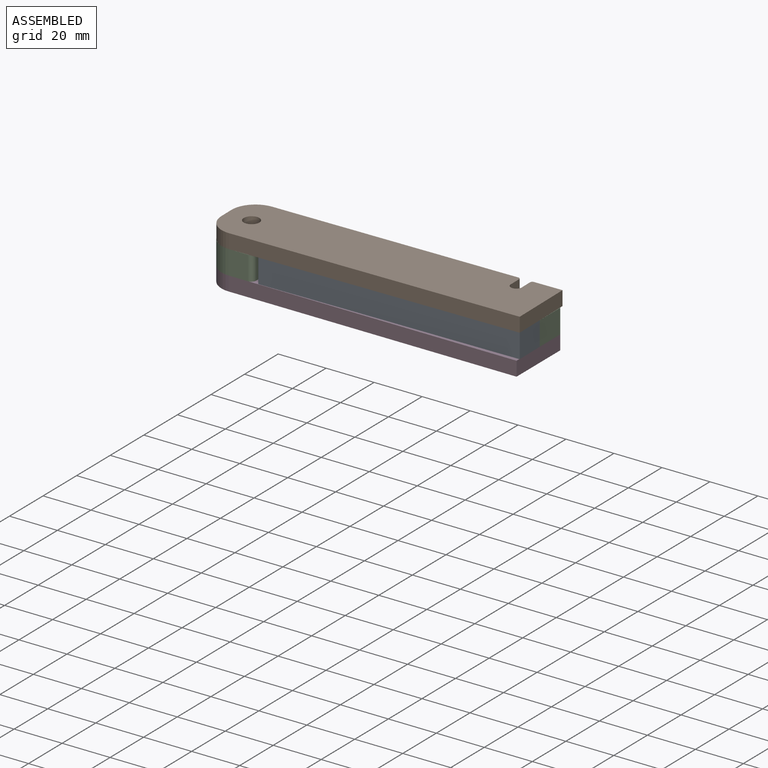
[diagram: assembled view]
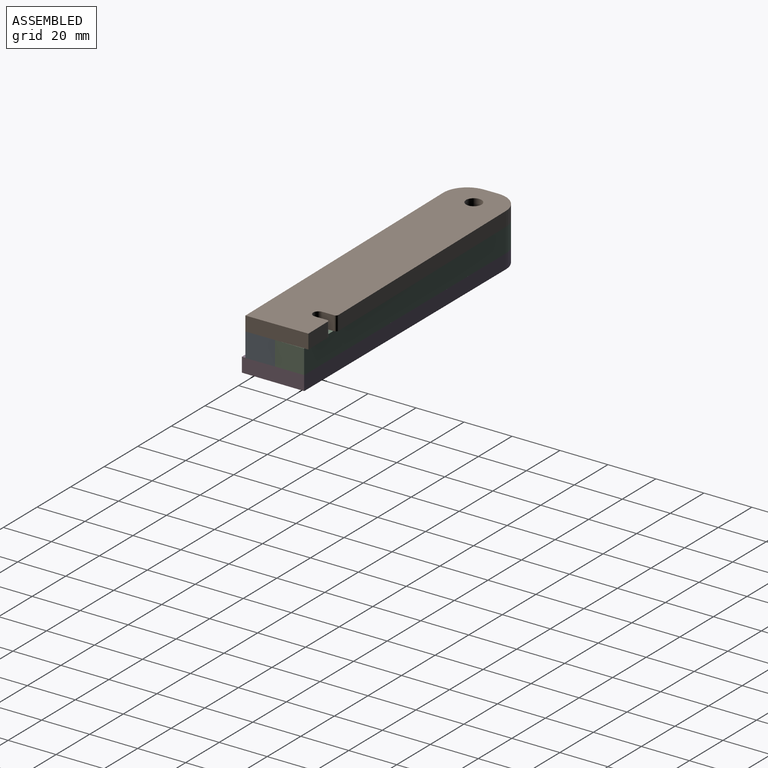
[diagram: assembled view, second angle]
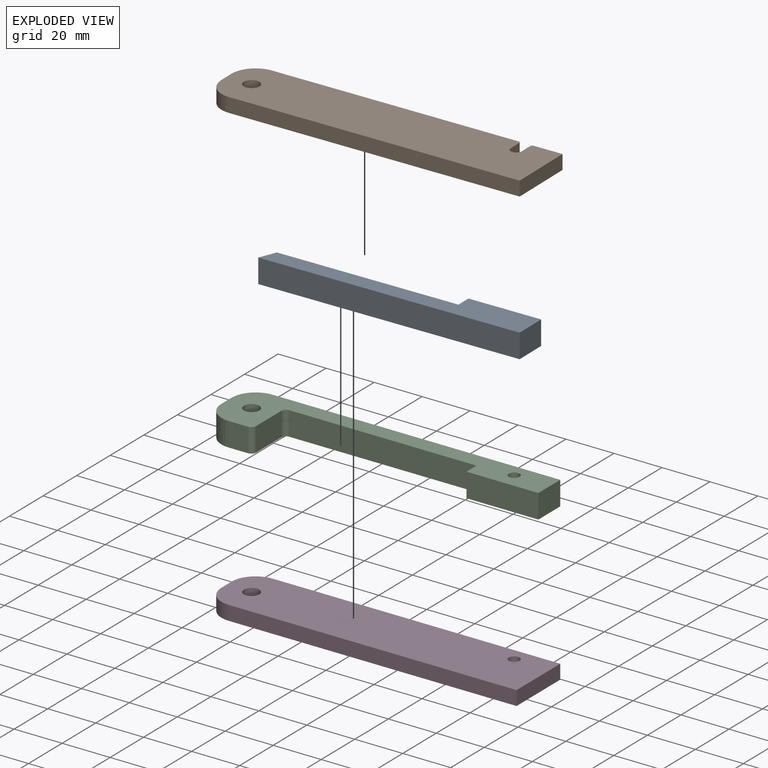
[diagram: exploded view]
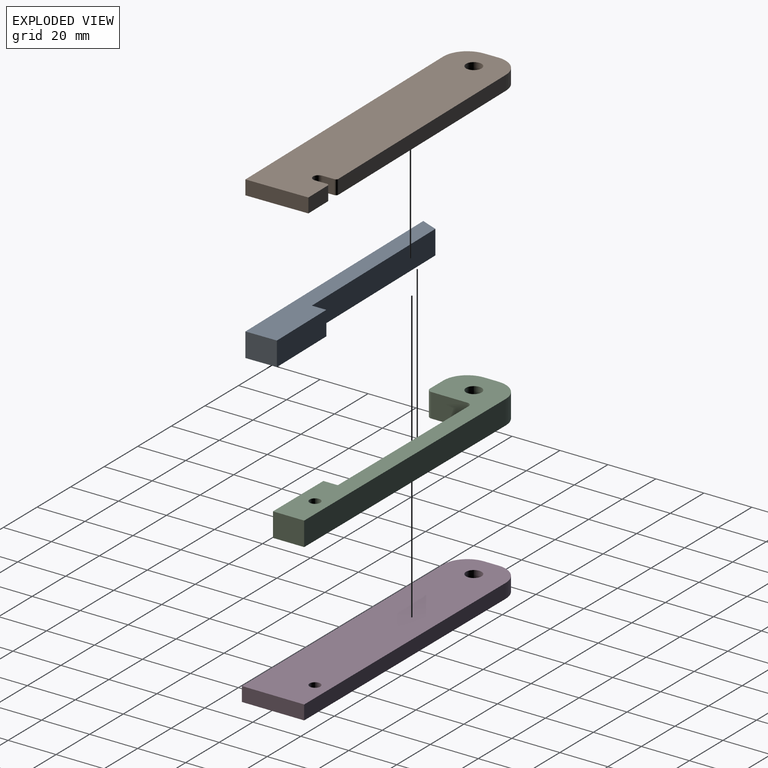
[diagram: exploded view, second angle]
ASSEMBLY  parts=4 mates=7
PART A: 8 faces, bbox 108x13x10 mm
  f0: plane 30x10mm, normal (0,1,0), area 300mm2, adj f1,f5,f6,f7
  f1: plane 10x6mm, normal (-1,0.01,0), area 60mm2, adj f0,f2,f6,f7
  f2: plane 75x10mm, normal (0,1,0), area 750mm2, adj f1,f3,f6,f7
  f3: plane 10x7mm, normal (-0.92,0.39,0), area 76mm2, adj f2,f4,f6,f7
  f4: plane 108x10mm, normal (0,-1,0), area 1080mm2, adj f3,f5,f6,f7
  f5: plane 13x10mm, normal (1,0,0), area 130mm2, adj f0,f4,f6,f7
  f6: plane 108x13mm, normal (0,0,1), area 925.8mm2, adj f0,f1,f2,f3,f4,f5
  f7: plane 108x13mm, normal (0,0,-1), area 925.8mm2, adj f0,f1,f2,f3,f4,f5
PART B: 15 faces, bbox 130x26x6 mm
  f0: plane 101.75x6mm, normal (0,1,0), area 610.5mm2, adj f1,f12,f13,f14
  f1: cylinder r=10mm len=10mm, axis (0,0,-1), area 94.2mm2, adj f0,f2,f13,f14
  f2: plane 6x6mm, normal (-1,0,0), area 36mm2, adj f1,f3,f13,f14
  f3: cylinder r=10mm len=10mm, axis (0,0,-1), area 94.2mm2, adj f2,f4,f13,f14
  f4: plane 120x6mm, normal (0,-1,0), area 720mm2, adj f3,f5,f13,f14
  f5: plane 26x6mm, normal (1,0,0), area 156mm2, adj f4,f6,f13,f14
  f6: plane 11.75x6mm, normal (0,1,0), area 70.5mm2, adj f5,f7,f13,f14
  f7: cylinder r=1mm len=6mm, axis (0,0,-1), area 9.4mm2, adj f6,f8,f13,f14
  f8: plane 6x5mm, normal (-1,0,0), area 30mm2, adj f7,f9,f13,f14
  f9: cylinder r=2.25mm len=6mm, axis (0,0,-1), area 42.4mm2, adj f8,f10,f13,f14
  f10: plane 6x5mm, normal (1,0,0), area 30mm2, adj f9,f12,f13,f14
  f11: cylinder r=3.25mm len=6.5mm, axis (0,0,-1), area 122.5mm2, adj f13,f14
  f12: cylinder r=1mm len=6mm, axis (0,0,-1), area 9.4mm2, adj f0,f10,f13,f14
  f13: plane 130x26mm, normal (0,0,1), area 3268.5mm2, adj f0,f1,f2,f3,f4,f5,f6,f7
  f14: plane 130x26mm, normal (0,0,-1), area 3268.5mm2, adj f0,f1,f2,f3,f4,f5,f6,f7
PART C: 16 faces, bbox 130x26x10 mm
  f0: plane 30x10mm, normal (0,-1,0), area 300mm2, adj f1,f13,f14,f15
  f1: plane 13x10mm, normal (1,0,0), area 130mm2, adj f0,f2,f14,f15
  f2: plane 120x10mm, normal (0,1,0), area 1200mm2, adj f1,f3,f14,f15
  f3: cylinder r=10mm len=10mm, axis (0,0,-1), area 157.1mm2, adj f2,f4,f14,f15
  f4: plane 10x6mm, normal (-1,0,0), area 60mm2, adj f3,f5,f14,f15
  f5: cylinder r=10mm len=10mm, axis (0,0,-1), area 157.1mm2, adj f4,f6,f14,f15
  f6: plane 10x8mm, normal (0,-1,0), area 80mm2, adj f5,f7,f14,f15
  f7: cylinder r=2mm len=10mm, axis (0,0,-1), area 31.4mm2, adj f6,f8,f14,f15
  f8: plane 15x10mm, normal (1,0,0), area 150mm2, adj f7,f9,f14,f15
  f9: cylinder r=2mm len=10mm, axis (0,0,-1), area 31.4mm2, adj f8,f10,f14,f15
  f10: plane 78x10mm, normal (0,-1,0), area 780mm2, adj f9,f13,f14,f15
  f11: cylinder r=3.25mm len=10mm, axis (0,0,-1), area 204.2mm2, adj f14,f15
  f12: cylinder r=2.25mm len=10mm, axis (0,0,-1), area 141.4mm2, adj f14,f15
  f13: plane 10x6mm, normal (-1,0,0), area 60mm2, adj f0,f10,f14,f15
  f14: plane 130x26mm, normal (0,0,1), area 1378mm2, adj f0,f1,f2,f3,f4,f5,f6,f7
  f15: plane 130x26mm, normal (0,0,-1), area 1378mm2, adj f0,f1,f2,f3,f4,f5,f6,f7
PART D: 10 faces, bbox 130x26x6 mm
  f0: plane 6x6mm, normal (-1,0,0), area 36mm2, adj f1,f6,f8,f9
  f1: cylinder r=10mm len=10mm, axis (0,0,-1), area 94.2mm2, adj f0,f2,f8,f9
  f2: plane 120x6mm, normal (0,-1,0), area 720mm2, adj f1,f3,f8,f9
  f3: plane 26x6mm, normal (1,0,0), area 156mm2, adj f2,f4,f8,f9
  f4: plane 120x6mm, normal (0,1,0), area 720mm2, adj f3,f6,f8,f9
  f5: cylinder r=3.25mm len=6.5mm, axis (0,0,-1), area 122.5mm2, adj f8,f9
  f6: cylinder r=10mm len=10mm, axis (0,0,-1), area 94.2mm2, adj f0,f4,f8,f9
  f7: cylinder r=2.25mm len=6mm, axis (0,0,-1), area 84.8mm2, adj f8,f9
  f8: plane 130x26mm, normal (0,0,1), area 3288mm2, adj f0,f1,f2,f3,f4,f5,f6,f7
  f9: plane 130x26mm, normal (0,0,-1), area 3288mm2, adj f0,f1,f2,f3,f4,f5,f6,f7
PLACE A rot(axis=(0,0,1),0.8deg) t=(2.46,17.23,-3.38)mm
PLACE B rot(axis=(0,0,1),0.8deg) t=(2.46,17.23,6.62)mm
PLACE C t=(2.38,17.1,-3.38)mm
PLACE D t=(2.38,17.1,-9.38)mm fixed
MATE cylindrical C.f11 <-> D.f5  axis (0,0,1) through (-7.19,23.1,6.62)mm
MATE planar A.f6 <-> B.f14  axis (0,0,1) through (66.67,15.86,6.62)mm
MATE planar B.f11 <-> C.f3  axis (0,0,-1) through (-7.19,23.1,6.62)mm
MATE cylindrical B.f11 <-> C.f11  axis (0,0,1) through (-7.19,23.1,12.62)mm
MATE planar C.f15 <-> D.f8  axis (0,0,-1) through (41.44,28.73,-3.38)mm
MATE planar B.f4 <-> A.f4  axis (0.01,-1,0) through (52.55,10.91,9.62)mm
MATE planar B.f5 <-> A.f5  axis (1,0.01,0) through (112.37,24.73,9.62)mm
